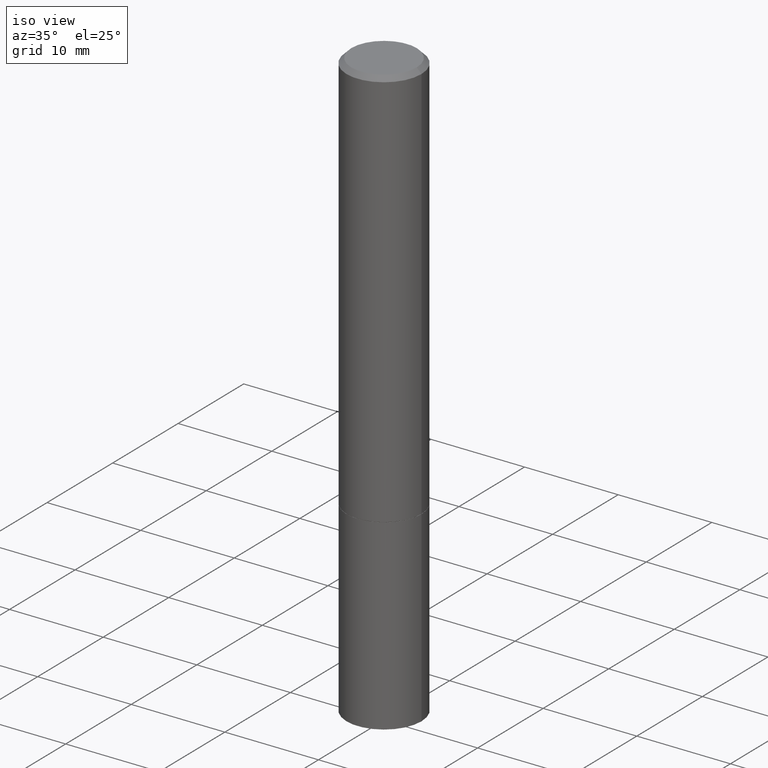
[diagram: clean part render]
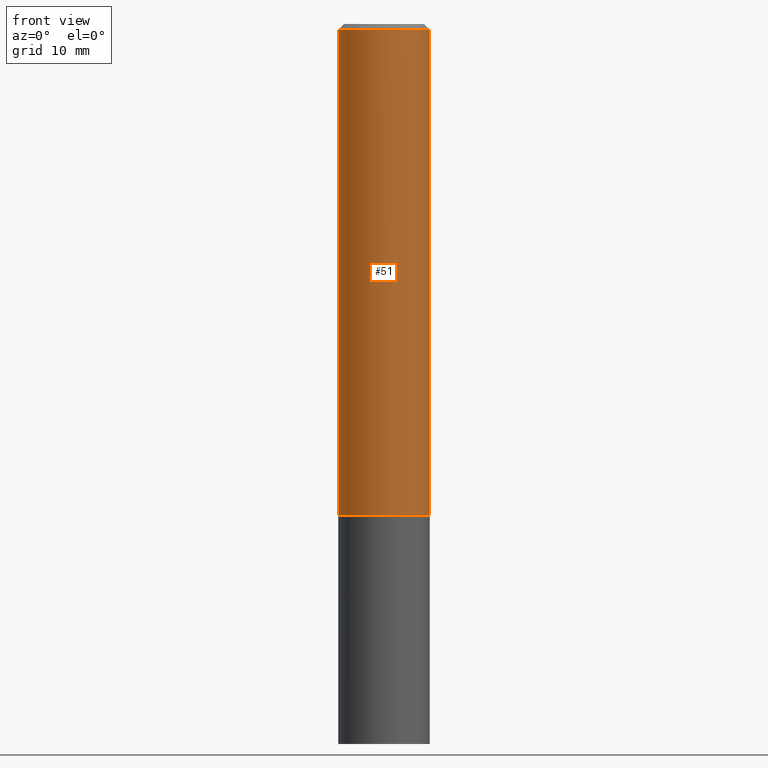
[diagram: tour spotlight — one face highlighted and labeled with its STEP entity id]
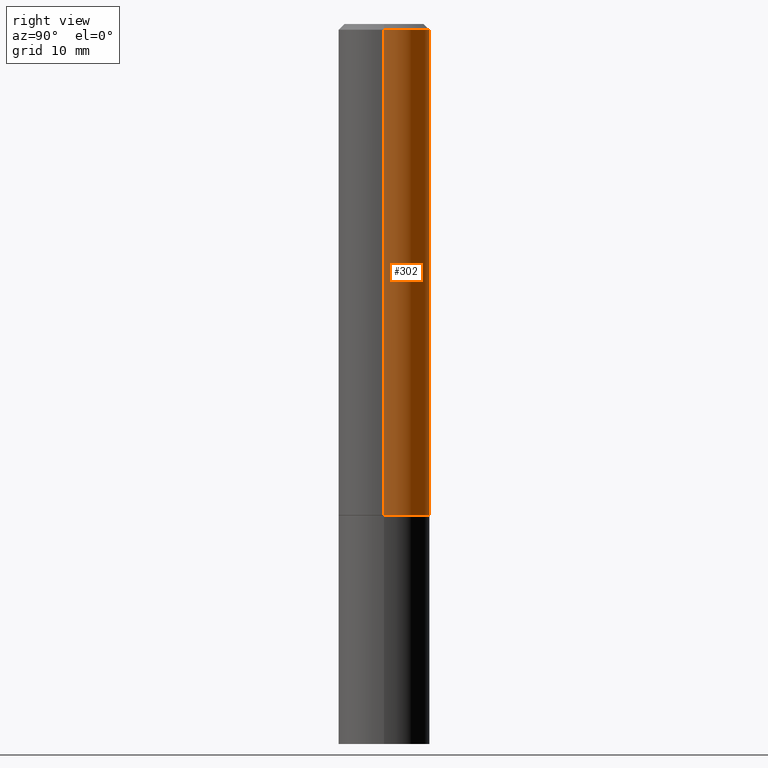
[diagram: tour spotlight — one face highlighted and labeled with its STEP entity id]
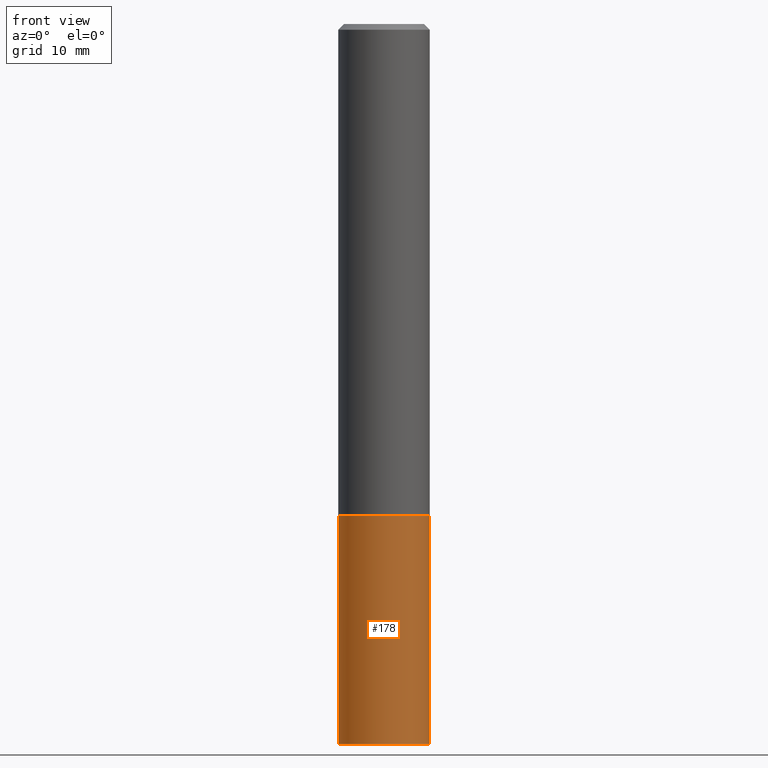
[diagram: tour spotlight — one face highlighted and labeled with its STEP entity id]
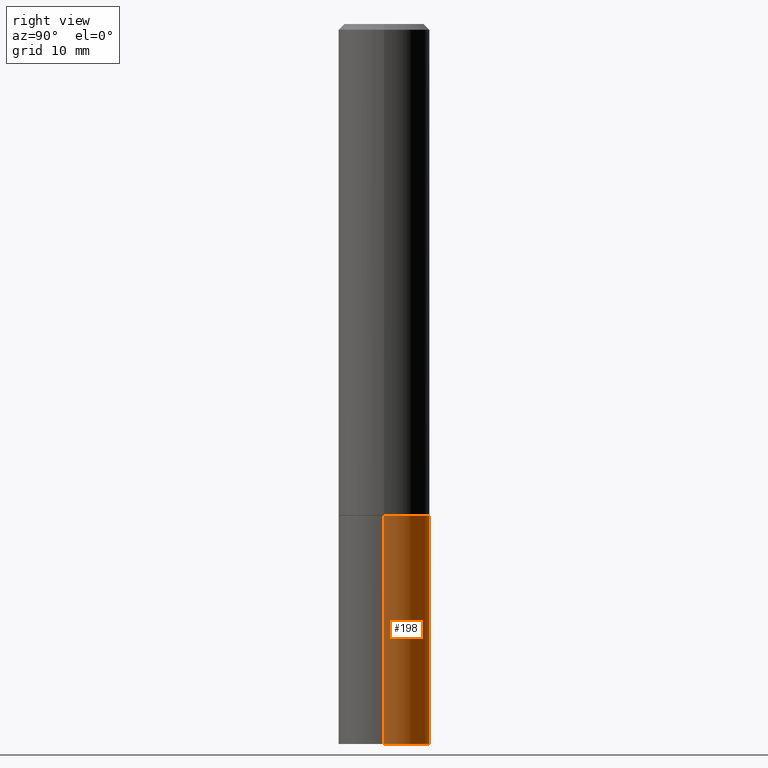
[diagram: tour spotlight — one face highlighted and labeled with its STEP entity id]
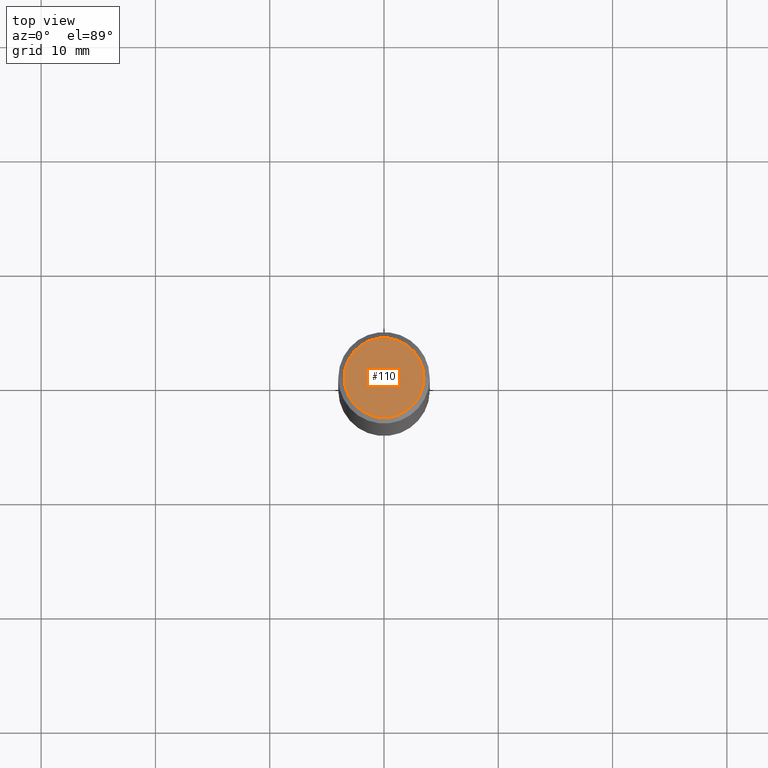
[diagram: tour spotlight — one face highlighted and labeled with its STEP entity id]
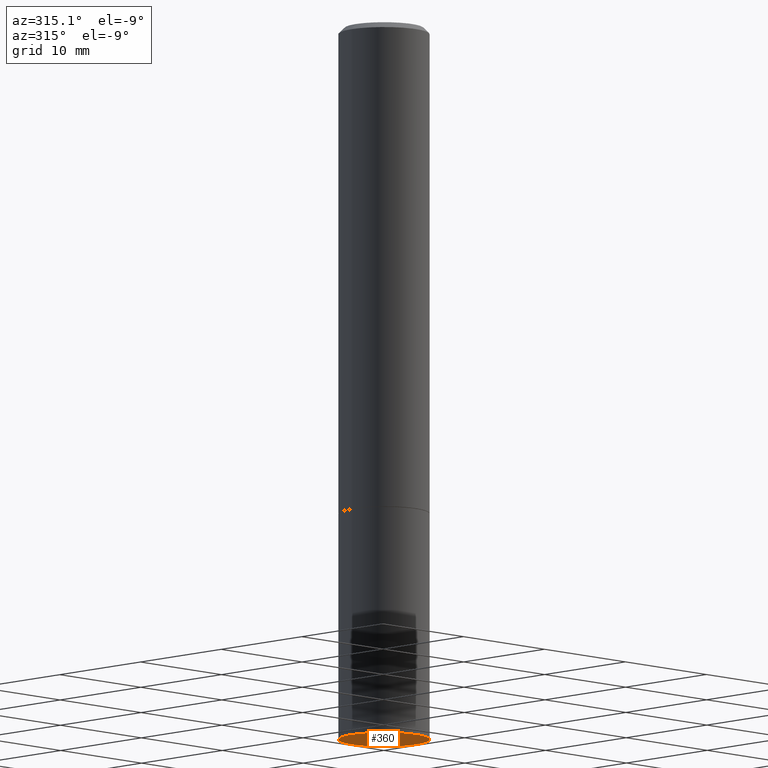
[diagram: tour spotlight — one face highlighted and labeled with its STEP entity id]
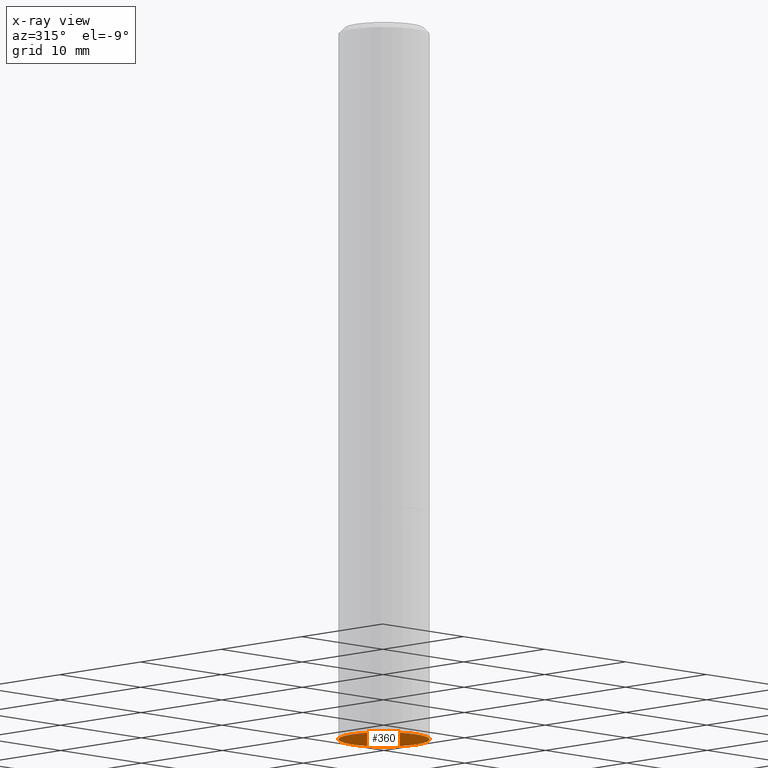
[diagram: x-ray of the same camera — body ghosted, this tour face saturated]
A machine part: a face-by-face anatomy tour. The part has 12 B-rep faces; the first image is the clean iso view, then the 6 largest visible faces are spotlighted one at a time (largest first), each with its STEP entity span.

Face 1 — front view, entity #51. In plain terms, the highlighted cylindrical surface (partial cylindrical patch) has radius 4.0005 mm, axis along (-0, 0, 1).
Definition (entity closure, byte-faithful):
#13 = CARTESIAN_POINT ( 'NONE',  ( 0.1575000000000000011, -7.007053898924306337E-15, -1.691900000000000404 ) ) ;
#14 = FACE_OUTER_BOUND ( 'NONE', #22, .T. ) ;
#18 = CARTESIAN_POINT ( 'NONE',  ( 0.1574999999999997513, -1.150358061425877697E-15, -0.02000000000000003511 ) ) ;
#22 = EDGE_LOOP ( 'NONE', ( #247, #249, #246, #213 ) ) ;
#23 = CIRCLE ( 'NONE', #186, 0.1575000000000000011 ) ;
#27 = DIRECTION ( 'NONE',  ( 1.000000000000000000, -6.982962677686268288E-15, 0.000000000000000000 ) ) ;
#31 = DIRECTION ( 'NONE',  ( 1.000000000000000000, -6.982962677686266711E-15, 4.876176775795935793E-29 ) ) ;
#36 = LINE ( 'NONE', #175, #208 ) ;
#51 = ADVANCED_FACE ( 'NONE', ( #14 ), #192, .T. ) ;
#66 = EDGE_CURVE ( 'NONE', #109, #144, #341, .T. ) ;
#103 = CARTESIAN_POINT ( 'NONE',  ( 4.137488673184633315E-29, -5.907237277188718857E-15, -1.691900000000000404 ) ) ;
#106 = DIRECTION ( 'NONE',  ( -2.445468806185136597E-29, 3.491481338843145583E-15, 1.000000000000000000 ) ) ;
#109 = VERTEX_POINT ( 'NONE', #13 ) ;
#113 = VERTEX_POINT ( 'NONE', #141 ) ;
#128 = DIRECTION ( 'NONE',  ( -2.445468806185136597E-29, 3.491481338843145583E-15, 1.000000000000000000 ) ) ;
#132 = AXIS2_PLACEMENT_3D ( 'NONE', #310, #170, #31 ) ;
#141 = CARTESIAN_POINT ( 'NONE',  ( -0.1574999999999997513, 1.029986994958722210E-15, -0.02000000000000003511 ) ) ;
#144 = VERTEX_POINT ( 'NONE', #18 ) ;
#170 = DIRECTION ( 'NONE',  ( -2.445468806185136597E-29, 3.491481338843145583E-15, 1.000000000000000000 ) ) ;
#175 = CARTESIAN_POINT ( 'NONE',  ( -0.1574999999999998901, 1.119104808822157012E-15, -7.747322767151471379E-30 ) ) ;
#182 = VECTOR ( 'NONE', #333, 39.37007874015748143 ) ;
#186 = AXIS2_PLACEMENT_3D ( 'NONE', #103, #128, #27 ) ;
#192 = CYLINDRICAL_SURFACE ( 'NONE', #132, 0.1574999999999998901 ) ;
#208 = VECTOR ( 'NONE', #287, 39.37007874015748143 ) ;
#213 = ORIENTED_EDGE ( 'NONE', *, *, #356, .F. ) ;
#246 = ORIENTED_EDGE ( 'NONE', *, *, #66, .T. ) ;
#247 = ORIENTED_EDGE ( 'NONE', *, *, #269, .F. ) ;
#249 = ORIENTED_EDGE ( 'NONE', *, *, #332, .T. ) ;
#269 = EDGE_CURVE ( 'NONE', #274, #113, #36, .T. ) ;
#274 = VERTEX_POINT ( 'NONE', #344 ) ;
#287 = DIRECTION ( 'NONE',  ( -2.445468806185136877E-29, 3.491481338843145188E-15, 1.000000000000000000 ) ) ;
#295 = AXIS2_PLACEMENT_3D ( 'NONE', #326, #106, #325 ) ;
#310 = CARTESIAN_POINT ( 'NONE',  ( 0.000000000000000000, 0.000000000000000000, 0.000000000000000000 ) ) ;
#313 = CARTESIAN_POINT ( 'NONE',  ( 0.1574999999999998901, -1.099816621735586297E-15, 7.679978421878593829E-30 ) ) ;
#325 = DIRECTION ( 'NONE',  ( 1.000000000000000000, -6.982962677686266711E-15, 0.000000000000000000 ) ) ;
#326 = CARTESIAN_POINT ( 'NONE',  ( 4.890937612370281041E-31, -6.982962677686302702E-17, -0.02000000000000003511 ) ) ;
#332 = EDGE_CURVE ( 'NONE', #274, #109, #23, .T. ) ;
#333 = DIRECTION ( 'NONE',  ( -2.445468806185136877E-29, 3.491481338843145188E-15, 1.000000000000000000 ) ) ;
#338 = CIRCLE ( 'NONE', #295, 0.1574999999999997513 ) ;
#341 = LINE ( 'NONE', #313, #182 ) ;
#344 = CARTESIAN_POINT ( 'NONE',  ( -0.1575000000000000011, -1.869428643160631107E-15, -1.691900000000000404 ) ) ;
#356 = EDGE_CURVE ( 'NONE', #113, #144, #338, .T. ) ;

Face 2 — right view, entity #302. In plain terms, the highlighted cylindrical surface (partial cylindrical patch) has radius 4.0005 mm, axis along (-0, 0, 1).
Definition (entity closure, byte-faithful):
#13 = CARTESIAN_POINT ( 'NONE',  ( 0.1575000000000000011, -7.007053898924306337E-15, -1.691900000000000404 ) ) ;
#18 = CARTESIAN_POINT ( 'NONE',  ( 0.1574999999999997513, -1.150358061425877697E-15, -0.02000000000000003511 ) ) ;
#20 = DIRECTION ( 'NONE',  ( 1.000000000000000000, -6.982962677686266711E-15, 4.876176775795935793E-29 ) ) ;
#36 = LINE ( 'NONE', #175, #208 ) ;
#45 = FACE_OUTER_BOUND ( 'NONE', #87, .T. ) ;
#66 = EDGE_CURVE ( 'NONE', #109, #144, #341, .T. ) ;
#87 = EDGE_LOOP ( 'NONE', ( #272, #174, #288, #194 ) ) ;
#92 = DIRECTION ( 'NONE',  ( -2.445468806185136597E-29, 3.491481338843145583E-15, 1.000000000000000000 ) ) ;
#109 = VERTEX_POINT ( 'NONE', #13 ) ;
#113 = VERTEX_POINT ( 'NONE', #141 ) ;
#125 = DIRECTION ( 'NONE',  ( 1.000000000000000000, -6.982962677686266711E-15, 0.000000000000000000 ) ) ;
#129 = CIRCLE ( 'NONE', #166, 0.1575000000000000011 ) ;
#141 = CARTESIAN_POINT ( 'NONE',  ( -0.1574999999999997513, 1.029986994958722210E-15, -0.02000000000000003511 ) ) ;
#144 = VERTEX_POINT ( 'NONE', #18 ) ;
#166 = AXIS2_PLACEMENT_3D ( 'NONE', #342, #92, #195 ) ;
#174 = ORIENTED_EDGE ( 'NONE', *, *, #269, .T. ) ;
#175 = CARTESIAN_POINT ( 'NONE',  ( -0.1574999999999998901, 1.119104808822157012E-15, -7.747322767151471379E-30 ) ) ;
#182 = VECTOR ( 'NONE', #333, 39.37007874015748143 ) ;
#194 = ORIENTED_EDGE ( 'NONE', *, *, #66, .F. ) ;
#195 = DIRECTION ( 'NONE',  ( 1.000000000000000000, -6.982962677686268288E-15, 0.000000000000000000 ) ) ;
#208 = VECTOR ( 'NONE', #287, 39.37007874015748143 ) ;
#217 = EDGE_CURVE ( 'NONE', #144, #113, #304, .T. ) ;
#237 = CARTESIAN_POINT ( 'NONE',  ( 0.000000000000000000, 0.000000000000000000, 0.000000000000000000 ) ) ;
#241 = EDGE_CURVE ( 'NONE', #109, #274, #129, .T. ) ;
#245 = CYLINDRICAL_SURFACE ( 'NONE', #292, 0.1574999999999998901 ) ;
#269 = EDGE_CURVE ( 'NONE', #274, #113, #36, .T. ) ;
#272 = ORIENTED_EDGE ( 'NONE', *, *, #241, .T. ) ;
#273 = DIRECTION ( 'NONE',  ( -2.445468806185136597E-29, 3.491481338843145583E-15, 1.000000000000000000 ) ) ;
#274 = VERTEX_POINT ( 'NONE', #344 ) ;
#280 = DIRECTION ( 'NONE',  ( -2.445468806185136597E-29, 3.491481338843145583E-15, 1.000000000000000000 ) ) ;
#287 = DIRECTION ( 'NONE',  ( -2.445468806185136877E-29, 3.491481338843145188E-15, 1.000000000000000000 ) ) ;
#288 = ORIENTED_EDGE ( 'NONE', *, *, #217, .F. ) ;
#289 = CARTESIAN_POINT ( 'NONE',  ( 4.890937612370281041E-31, -6.982962677686302702E-17, -0.02000000000000003511 ) ) ;
#292 = AXIS2_PLACEMENT_3D ( 'NONE', #237, #273, #20 ) ;
#298 = AXIS2_PLACEMENT_3D ( 'NONE', #289, #280, #125 ) ;
#302 = ADVANCED_FACE ( 'NONE', ( #45 ), #245, .T. ) ;
#304 = CIRCLE ( 'NONE', #298, 0.1574999999999997513 ) ;
#313 = CARTESIAN_POINT ( 'NONE',  ( 0.1574999999999998901, -1.099816621735586297E-15, 7.679978421878593829E-30 ) ) ;
#333 = DIRECTION ( 'NONE',  ( -2.445468806185136877E-29, 3.491481338843145188E-15, 1.000000000000000000 ) ) ;
#341 = LINE ( 'NONE', #313, #182 ) ;
#342 = CARTESIAN_POINT ( 'NONE',  ( 4.137488673184633315E-29, -5.907237277188718857E-15, -1.691900000000000404 ) ) ;
#344 = CARTESIAN_POINT ( 'NONE',  ( -0.1575000000000000011, -1.869428643160631107E-15, -1.691900000000000404 ) ) ;

Face 3 — front view, entity #178. In plain terms, the highlighted cylindrical surface (partial cylindrical patch) has radius 4.0005 mm, axis along (-0, 0, 1).
Definition (entity closure, byte-faithful):
#3 = DIRECTION ( 'NONE',  ( 1.000000000000000000, -6.982962677686268288E-15, 0.000000000000000000 ) ) ;
#8 = ORIENTED_EDGE ( 'NONE', *, *, #90, .T. ) ;
#16 = VECTOR ( 'NONE', #65, 39.37007874015748143 ) ;
#38 = CARTESIAN_POINT ( 'NONE',  ( 0.1575000000000000011, -9.759737786468242027E-15, -2.480300000000000171 ) ) ;
#57 = EDGE_CURVE ( 'NONE', #91, #80, #231, .T. ) ;
#63 = LINE ( 'NONE', #260, #317 ) ;
#65 = DIRECTION ( 'NONE',  ( -2.445468806185136877E-29, 3.491481338843145188E-15, 1.000000000000000000 ) ) ;
#70 = VERTEX_POINT ( 'NONE', #38 ) ;
#72 = CARTESIAN_POINT ( 'NONE',  ( 6.065496279980994755E-29, -8.659921164732655335E-15, -2.480300000000000171 ) ) ;
#77 = CARTESIAN_POINT ( 'NONE',  ( -0.1575000000000000011, -6.166220152807950602E-15, -2.480300000000000171 ) ) ;
#80 = VERTEX_POINT ( 'NONE', #351 ) ;
#81 = AXIS2_PLACEMENT_3D ( 'NONE', #140, #253, #3 ) ;
#90 = EDGE_CURVE ( 'NONE', #357, #70, #322, .T. ) ;
#91 = VERTEX_POINT ( 'NONE', #347 ) ;
#117 = CARTESIAN_POINT ( 'NONE',  ( 0.000000000000000000, 0.000000000000000000, 0.000000000000000000 ) ) ;
#122 = DIRECTION ( 'NONE',  ( -2.445468806185136877E-29, 3.491481338843145188E-15, 1.000000000000000000 ) ) ;
#134 = ORIENTED_EDGE ( 'NONE', *, *, #267, .F. ) ;
#140 = CARTESIAN_POINT ( 'NONE',  ( 4.139934141990818918E-29, -5.910728758527562653E-15, -1.692900000000000293 ) ) ;
#178 = ADVANCED_FACE ( 'NONE', ( #264 ), #193, .T. ) ;
#193 = CYLINDRICAL_SURFACE ( 'NONE', #309, 0.1575000000000000011 ) ;
#211 = EDGE_CURVE ( 'NONE', #70, #80, #63, .T. ) ;
#230 = CARTESIAN_POINT ( 'NONE',  ( -0.1575000000000000011, 1.119104808822157801E-15, -7.747322767151475583E-30 ) ) ;
#231 = CIRCLE ( 'NONE', #81, 0.1575000000000000011 ) ;
#234 = DIRECTION ( 'NONE',  ( 1.000000000000000000, -6.982962677686261977E-15, 0.000000000000000000 ) ) ;
#253 = DIRECTION ( 'NONE',  ( -2.445468806185136597E-29, 3.491481338843145583E-15, 1.000000000000000000 ) ) ;
#260 = CARTESIAN_POINT ( 'NONE',  ( 0.1575000000000000011, -1.099816621735586889E-15, 7.679978421878598033E-30 ) ) ;
#261 = ORIENTED_EDGE ( 'NONE', *, *, #211, .T. ) ;
#264 = FACE_OUTER_BOUND ( 'NONE', #366, .T. ) ;
#267 = EDGE_CURVE ( 'NONE', #357, #91, #314, .T. ) ;
#270 = AXIS2_PLACEMENT_3D ( 'NONE', #72, #291, #234 ) ;
#291 = DIRECTION ( 'NONE',  ( -2.445468806185136597E-29, 3.491481338843145583E-15, 1.000000000000000000 ) ) ;
#309 = AXIS2_PLACEMENT_3D ( 'NONE', #117, #319, #311 ) ;
#311 = DIRECTION ( 'NONE',  ( 1.000000000000000000, -6.982962677686265922E-15, 4.876176775795935232E-29 ) ) ;
#314 = LINE ( 'NONE', #230, #16 ) ;
#315 = ORIENTED_EDGE ( 'NONE', *, *, #57, .F. ) ;
#317 = VECTOR ( 'NONE', #122, 39.37007874015748143 ) ;
#319 = DIRECTION ( 'NONE',  ( -2.445468806185136597E-29, 3.491481338843145583E-15, 1.000000000000000000 ) ) ;
#322 = CIRCLE ( 'NONE', #270, 0.1575000000000000011 ) ;
#347 = CARTESIAN_POINT ( 'NONE',  ( -0.1575000000000000011, -6.166220152807950602E-15, -1.692900000000000293 ) ) ;
#351 = CARTESIAN_POINT ( 'NONE',  ( 0.1575000000000000011, -7.010545380263150133E-15, -1.692900000000000293 ) ) ;
#357 = VERTEX_POINT ( 'NONE', #77 ) ;
#366 = EDGE_LOOP ( 'NONE', ( #134, #8, #261, #315 ) ) ;

Face 4 — right view, entity #198. In plain terms, the highlighted cylindrical surface (partial cylindrical patch) has radius 4.0005 mm, axis along (-0, 0, 1).
Definition (entity closure, byte-faithful):
#15 = DIRECTION ( 'NONE',  ( -2.445468806185136597E-29, 3.491481338843145583E-15, 1.000000000000000000 ) ) ;
#16 = VECTOR ( 'NONE', #65, 39.37007874015748143 ) ;
#32 = DIRECTION ( 'NONE',  ( 1.000000000000000000, -6.982962677686268288E-15, 0.000000000000000000 ) ) ;
#38 = CARTESIAN_POINT ( 'NONE',  ( 0.1575000000000000011, -9.759737786468242027E-15, -2.480300000000000171 ) ) ;
#40 = FACE_OUTER_BOUND ( 'NONE', #244, .T. ) ;
#63 = LINE ( 'NONE', #260, #317 ) ;
#65 = DIRECTION ( 'NONE',  ( -2.445468806185136877E-29, 3.491481338843145188E-15, 1.000000000000000000 ) ) ;
#70 = VERTEX_POINT ( 'NONE', #38 ) ;
#77 = CARTESIAN_POINT ( 'NONE',  ( -0.1575000000000000011, -6.166220152807950602E-15, -2.480300000000000171 ) ) ;
#80 = VERTEX_POINT ( 'NONE', #351 ) ;
#91 = VERTEX_POINT ( 'NONE', #347 ) ;
#96 = CARTESIAN_POINT ( 'NONE',  ( 0.000000000000000000, 0.000000000000000000, 0.000000000000000000 ) ) ;
#122 = DIRECTION ( 'NONE',  ( -2.445468806185136877E-29, 3.491481338843145188E-15, 1.000000000000000000 ) ) ;
#146 = AXIS2_PLACEMENT_3D ( 'NONE', #96, #203, #285 ) ;
#151 = CYLINDRICAL_SURFACE ( 'NONE', #146, 0.1575000000000000011 ) ;
#153 = DIRECTION ( 'NONE',  ( 1.000000000000000000, -6.982962677686261977E-15, 0.000000000000000000 ) ) ;
#157 = EDGE_CURVE ( 'NONE', #70, #357, #256, .T. ) ;
#179 = ORIENTED_EDGE ( 'NONE', *, *, #211, .F. ) ;
#187 = AXIS2_PLACEMENT_3D ( 'NONE', #262, #15, #32 ) ;
#198 = ADVANCED_FACE ( 'NONE', ( #40 ), #151, .T. ) ;
#201 = CARTESIAN_POINT ( 'NONE',  ( 6.065496279980994755E-29, -8.659921164732655335E-15, -2.480300000000000171 ) ) ;
#203 = DIRECTION ( 'NONE',  ( -2.445468806185136597E-29, 3.491481338843145583E-15, 1.000000000000000000 ) ) ;
#211 = EDGE_CURVE ( 'NONE', #70, #80, #63, .T. ) ;
#227 = ORIENTED_EDGE ( 'NONE', *, *, #157, .T. ) ;
#230 = CARTESIAN_POINT ( 'NONE',  ( -0.1575000000000000011, 1.119104808822157801E-15, -7.747322767151475583E-30 ) ) ;
#239 = EDGE_CURVE ( 'NONE', #80, #91, #353, .T. ) ;
#244 = EDGE_LOOP ( 'NONE', ( #227, #259, #362, #179 ) ) ;
#256 = CIRCLE ( 'NONE', #327, 0.1575000000000000011 ) ;
#259 = ORIENTED_EDGE ( 'NONE', *, *, #267, .T. ) ;
#260 = CARTESIAN_POINT ( 'NONE',  ( 0.1575000000000000011, -1.099816621735586889E-15, 7.679978421878598033E-30 ) ) ;
#262 = CARTESIAN_POINT ( 'NONE',  ( 4.139934141990818918E-29, -5.910728758527562653E-15, -1.692900000000000293 ) ) ;
#267 = EDGE_CURVE ( 'NONE', #357, #91, #314, .T. ) ;
#285 = DIRECTION ( 'NONE',  ( 1.000000000000000000, -6.982962677686265922E-15, 4.876176775795935232E-29 ) ) ;
#314 = LINE ( 'NONE', #230, #16 ) ;
#316 = DIRECTION ( 'NONE',  ( -2.445468806185136597E-29, 3.491481338843145583E-15, 1.000000000000000000 ) ) ;
#317 = VECTOR ( 'NONE', #122, 39.37007874015748143 ) ;
#327 = AXIS2_PLACEMENT_3D ( 'NONE', #201, #316, #153 ) ;
#347 = CARTESIAN_POINT ( 'NONE',  ( -0.1575000000000000011, -6.166220152807950602E-15, -1.692900000000000293 ) ) ;
#351 = CARTESIAN_POINT ( 'NONE',  ( 0.1575000000000000011, -7.010545380263150133E-15, -1.692900000000000293 ) ) ;
#353 = CIRCLE ( 'NONE', #187, 0.1575000000000000011 ) ;
#357 = VERTEX_POINT ( 'NONE', #77 ) ;
#362 = ORIENTED_EDGE ( 'NONE', *, *, #239, .F. ) ;

Face 5 — top view, entity #110. In plain terms, the highlighted planar face has unit normal (0, -0, -1).
Definition (entity closure, byte-faithful):
#4 = CARTESIAN_POINT ( 'NONE',  ( -1.043851414335219820E-46, 1.490343170380447200E-32, 4.268512490100411279E-18 ) ) ;
#9 = DIRECTION ( 'NONE',  ( 1.000000000000000000, -6.982962677686265922E-15, 4.876173381029109010E-29 ) ) ;
#35 = VERTEX_POINT ( 'NONE', #62 ) ;
#39 = DIRECTION ( 'NONE',  ( -2.445468806185136597E-29, 3.491481338843145583E-15, 1.000000000000000000 ) ) ;
#41 = DIRECTION ( 'NONE',  ( 2.438088387897960049E-29, -3.491481338843145188E-15, -1.000000000000000000 ) ) ;
#50 = EDGE_CURVE ( 'NONE', #147, #35, #263, .T. ) ;
#62 = CARTESIAN_POINT ( 'NONE',  ( -0.1374999999999997613, 9.950721815702909552E-16, 4.268512490093574228E-18 ) ) ;
#68 = DIRECTION ( 'NONE',  ( -1.000000000000000000, 6.982962677686265922E-15, -4.876176775795935793E-29 ) ) ;
#71 = CARTESIAN_POINT ( 'NONE',  ( 0.1374999999999997613, -1.046838268059730717E-15, 4.268512490107428597E-18 ) ) ;
#94 = CARTESIAN_POINT ( 'NONE',  ( 9.601573681818598978E-16, 0.1374999999999997613, -4.779444278458815105E-16 ) ) ;
#102 = EDGE_CURVE ( 'NONE', #35, #147, #202, .T. ) ;
#110 = ADVANCED_FACE ( 'NONE', ( #258 ), #172, .F. ) ;
#118 = AXIS2_PLACEMENT_3D ( 'NONE', #4, #254, #9 ) ;
#138 = AXIS2_PLACEMENT_3D ( 'NONE', #94, #41, #68 ) ;
#147 = VERTEX_POINT ( 'NONE', #71 ) ;
#172 = PLANE ( 'NONE',  #138 ) ;
#202 = CIRCLE ( 'NONE', #118, 0.1374999999999997613 ) ;
#229 = ORIENTED_EDGE ( 'NONE', *, *, #50, .T. ) ;
#254 = DIRECTION ( 'NONE',  ( -2.445468806185136597E-29, 3.491481338843145583E-15, 1.000000000000000000 ) ) ;
#258 = FACE_OUTER_BOUND ( 'NONE', #331, .T. ) ;
#263 = CIRCLE ( 'NONE', #293, 0.1374999999999997613 ) ;
#279 = DIRECTION ( 'NONE',  ( 1.000000000000000000, -6.982962677686265922E-15, 4.876173381029109010E-29 ) ) ;
#293 = AXIS2_PLACEMENT_3D ( 'NONE', #318, #39, #279 ) ;
#318 = CARTESIAN_POINT ( 'NONE',  ( -1.043851414335219820E-46, 1.490343170380447200E-32, 4.268512490100411279E-18 ) ) ;
#330 = ORIENTED_EDGE ( 'NONE', *, *, #102, .T. ) ;
#331 = EDGE_LOOP ( 'NONE', ( #330, #229 ) ) ;

Face 6 — auxiliary view, entity #360. An x-ray twin of the same camera follows (body ghosted, this face saturated) — the face is partly hidden behind the body. In plain terms, the highlighted planar face has unit normal (0, -0, -1).
Definition (entity closure, byte-faithful):
#38 = CARTESIAN_POINT ( 'NONE',  ( 0.1575000000000000011, -9.759737786468242027E-15, -2.480300000000000171 ) ) ;
#46 = DIRECTION ( 'NONE',  ( -1.000000000000000000, 6.982962677686265922E-15, -4.876176775795935793E-29 ) ) ;
#64 = ORIENTED_EDGE ( 'NONE', *, *, #157, .F. ) ;
#70 = VERTEX_POINT ( 'NONE', #38 ) ;
#72 = CARTESIAN_POINT ( 'NONE',  ( 6.065496279980994755E-29, -8.659921164732655335E-15, -2.480300000000000171 ) ) ;
#76 = DIRECTION ( 'NONE',  ( 2.438088387897960049E-29, -3.491481338843145188E-15, -1.000000000000000000 ) ) ;
#77 = CARTESIAN_POINT ( 'NONE',  ( -0.1575000000000000011, -6.166220152807950602E-15, -2.480300000000000171 ) ) ;
#90 = EDGE_CURVE ( 'NONE', #357, #70, #322, .T. ) ;
#135 = PLANE ( 'NONE',  #143 ) ;
#143 = AXIS2_PLACEMENT_3D ( 'NONE', #348, #76, #46 ) ;
#153 = DIRECTION ( 'NONE',  ( 1.000000000000000000, -6.982962677686261977E-15, 0.000000000000000000 ) ) ;
#157 = EDGE_CURVE ( 'NONE', #70, #357, #256, .T. ) ;
#201 = CARTESIAN_POINT ( 'NONE',  ( 6.065496279980994755E-29, -8.659921164732655335E-15, -2.480300000000000171 ) ) ;
#234 = DIRECTION ( 'NONE',  ( 1.000000000000000000, -6.982962677686261977E-15, 0.000000000000000000 ) ) ;
#236 = FACE_OUTER_BOUND ( 'NONE', #251, .T. ) ;
#251 = EDGE_LOOP ( 'NONE', ( #64, #275 ) ) ;
#256 = CIRCLE ( 'NONE', #327, 0.1575000000000000011 ) ;
#270 = AXIS2_PLACEMENT_3D ( 'NONE', #72, #291, #234 ) ;
#275 = ORIENTED_EDGE ( 'NONE', *, *, #90, .F. ) ;
#291 = DIRECTION ( 'NONE',  ( -2.445468806185136597E-29, 3.491481338843145583E-15, 1.000000000000000000 ) ) ;
#316 = DIRECTION ( 'NONE',  ( -2.445468806185136597E-29, 3.491481338843145583E-15, 1.000000000000000000 ) ) ;
#322 = CIRCLE ( 'NONE', #270, 0.1575000000000000011 ) ;
#327 = AXIS2_PLACEMENT_3D ( 'NONE', #201, #316, #153 ) ;
#348 = CARTESIAN_POINT ( 'NONE',  ( 1.099816621735647434E-15, 0.1574999999999913136, -2.480300000000001059 ) ) ;
#357 = VERTEX_POINT ( 'NONE', #77 ) ;
#360 = ADVANCED_FACE ( 'NONE', ( #236 ), #135, .T. ) ;